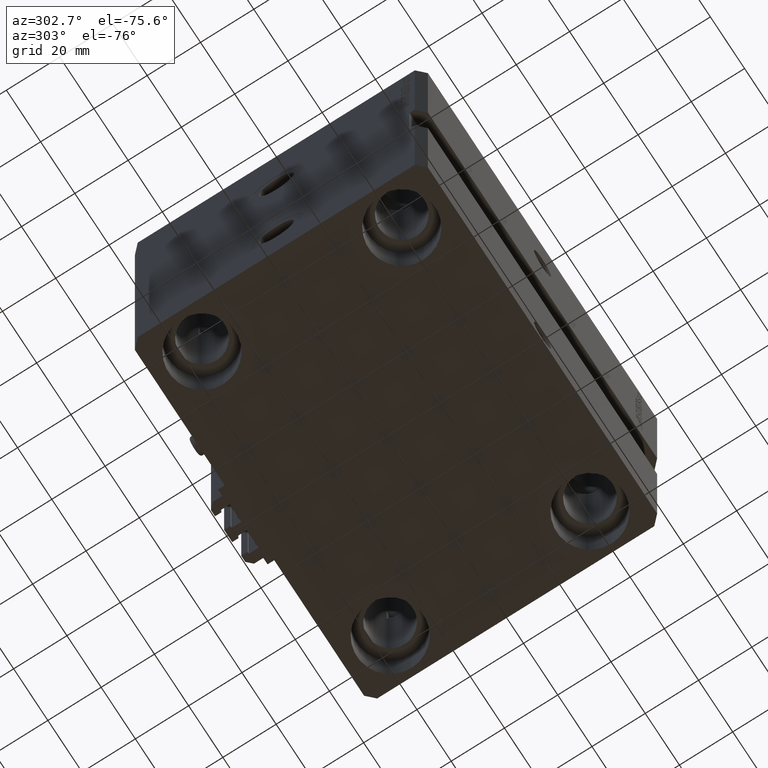
[diagram: clean part render]
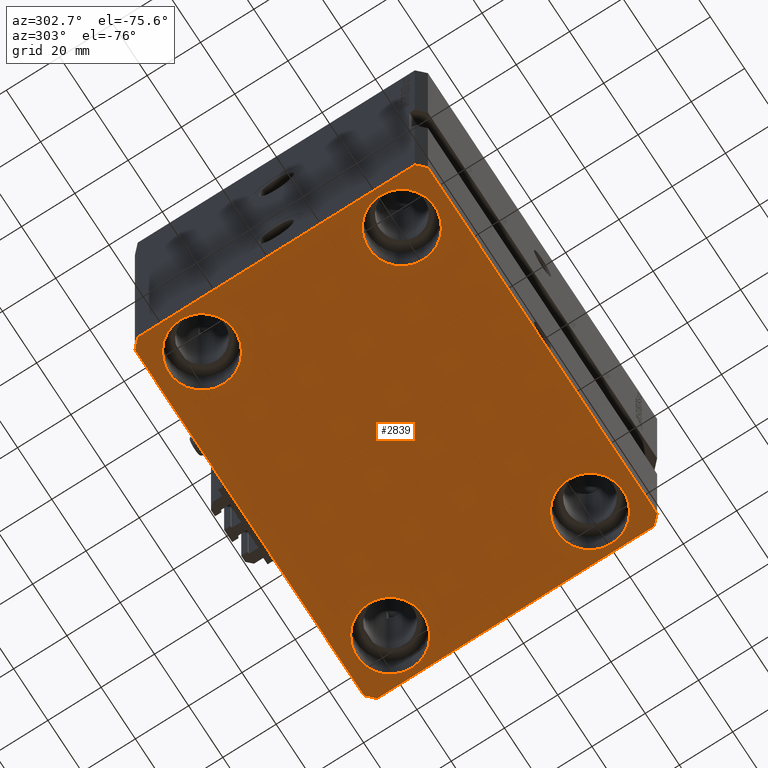
[diagram: same view with one face highlighted and labeled with its STEP entity id]
A machine part, auxiliary view. The second image highlights one B-rep face of the part: STEP entity #2839.
In plain terms, the highlighted planar face has unit normal (0, 0, 1).
Its self-contained STEP definition (entity closure, byte-faithful):
#484 = AXIS2_PLACEMENT_3D ( 'NONE', #720, #4172, #23899 ) ;
#579 = CARTESIAN_POINT ( 'NONE',  ( -69.99999999999998579, 51.99999999999999289, -120.0000000000000000 ) ) ;
#594 = CARTESIAN_POINT ( 'NONE',  ( -55.00000000000000711, 37.49999999999999289, -120.0000000000000000 ) ) ;
#720 = CARTESIAN_POINT ( 'NONE',  ( 55.00000000000000711, 37.50000000000002132, -120.0000000000000000 ) ) ;
#852 = DIRECTION ( 'NONE',  ( -0.000000000000000000, -0.000000000000000000, 1.000000000000000000 ) ) ;
#1883 = AXIS2_PLACEMENT_3D ( 'NONE', #29350, #36264, #47344 ) ;
#2174 = EDGE_CURVE ( 'NONE', #44367, #27927, #34802, .T. ) ;
#2358 = CARTESIAN_POINT ( 'NONE',  ( -70.00000000000001421, -51.99999999999999289, -120.0000000000000000 ) ) ;
#2815 = DIRECTION ( 'NONE',  ( 0.7071067811865474617, 0.7071067811865474617, 0.000000000000000000 ) ) ;
#2839 = ADVANCED_FACE ( 'NONE', ( #36828, #17529, #44467, #25701, #43734 ), #29902, .F. ) ;
#3472 = CARTESIAN_POINT ( 'NONE',  ( 0.000000000000000000, 0.000000000000000000, -120.0000000000000000 ) ) ;
#3723 = EDGE_CURVE ( 'NONE', #27927, #44367, #21408, .T. ) ;
#3942 = ORIENTED_EDGE ( 'NONE', *, *, #44794, .T. ) ;
#4172 = DIRECTION ( 'NONE',  ( -0.000000000000000000, -0.000000000000000000, 1.000000000000000000 ) ) ;
#4200 = DIRECTION ( 'NONE',  ( 1.000000000000000000, 0.000000000000000000, -0.000000000000000000 ) ) ;
#4235 = CIRCLE ( 'NONE', #1883, 12.49999999999999645 ) ;
#4370 = DIRECTION ( 'NONE',  ( 5.337610695313255329E-15, 1.000000000000000000, 0.000000000000000000 ) ) ;
#4490 = EDGE_LOOP ( 'NONE', ( #45468, #10200, #7808, #25040, #24400, #43162, #29966, #33585 ) ) ;
#4743 = EDGE_CURVE ( 'NONE', #40837, #48323, #18312, .T. ) ;
#4938 = CARTESIAN_POINT ( 'NONE',  ( 70.00000000000056843, 51.99999999999996447, -120.0000000000000000 ) ) ;
#5049 = DIRECTION ( 'NONE',  ( -1.000000000000000000, -1.553483709829969339E-16, 0.000000000000000000 ) ) ;
#5135 = DIRECTION ( 'NONE',  ( 0.7071067811865466846, -0.7071067811865483499, 0.000000000000000000 ) ) ;
#5735 = ORIENTED_EDGE ( 'NONE', *, *, #15153, .T. ) ;
#6095 = EDGE_CURVE ( 'NONE', #10245, #33961, #34743, .T. ) ;
#6127 = CARTESIAN_POINT ( 'NONE',  ( 55.00000000000000711, -37.50000000000000711, -120.0000000000000000 ) ) ;
#7140 = CARTESIAN_POINT ( 'NONE',  ( -55.00000000000000711, -37.50000000000000711, -120.0000000000000000 ) ) ;
#7808 = ORIENTED_EDGE ( 'NONE', *, *, #6095, .F. ) ;
#7964 = AXIS2_PLACEMENT_3D ( 'NONE', #6127, #24410, #13528 ) ;
#8321 = EDGE_CURVE ( 'NONE', #13605, #10245, #14156, .T. ) ;
#8370 = ORIENTED_EDGE ( 'NONE', *, *, #24659, .T. ) ;
#8435 = DIRECTION ( 'NONE',  ( -0.7071067811865451302, -0.7071067811865500152, 0.000000000000000000 ) ) ;
#8439 = EDGE_CURVE ( 'NONE', #43608, #13745, #16086, .T. ) ;
#8857 = VECTOR ( 'NONE', #38354, 1000.000000000000000 ) ;
#9137 = CIRCLE ( 'NONE', #41473, 12.49999999999999645 ) ;
#10157 = EDGE_CURVE ( 'NONE', #13745, #47762, #23655, .T. ) ;
#10200 = ORIENTED_EDGE ( 'NONE', *, *, #23243, .F. ) ;
#10245 = VERTEX_POINT ( 'NONE', #48060 ) ;
#10383 = CARTESIAN_POINT ( 'NONE',  ( -67.50000000000000000, -37.50000000000000711, -120.0000000000000000 ) ) ;
#10520 = AXIS2_PLACEMENT_3D ( 'NONE', #18631, #852, #11231 ) ;
#10613 = CARTESIAN_POINT ( 'NONE',  ( -67.00000000000001421, -55.00000000000000000, -120.0000000000000000 ) ) ;
#11231 = DIRECTION ( 'NONE',  ( 1.000000000000000000, 0.000000000000000000, 0.000000000000000000 ) ) ;
#11280 = CARTESIAN_POINT ( 'NONE',  ( 67.00000000000001421, -54.99999999999997868, -120.0000000000000000 ) ) ;
#11366 = DIRECTION ( 'NONE',  ( 0.000000000000000000, 0.000000000000000000, 1.000000000000000000 ) ) ;
#11412 = CARTESIAN_POINT ( 'NONE',  ( 67.50000000000000000, -37.50000000000000711, -120.0000000000000000 ) ) ;
#11647 = CARTESIAN_POINT ( 'NONE',  ( 42.50000000000000711, -37.50000000000000711, -120.0000000000000000 ) ) ;
#12798 = VERTEX_POINT ( 'NONE', #28109 ) ;
#12865 = VERTEX_POINT ( 'NONE', #29570 ) ;
#13295 = EDGE_CURVE ( 'NONE', #47762, #13605, #28904, .T. ) ;
#13320 = DIRECTION ( 'NONE',  ( -0.7071067811865344721, 0.7071067811865606734, 0.000000000000000000 ) ) ;
#13528 = DIRECTION ( 'NONE',  ( 1.000000000000000000, 0.000000000000000000, 0.000000000000000000 ) ) ;
#13605 = VERTEX_POINT ( 'NONE', #11280 ) ;
#13745 = VERTEX_POINT ( 'NONE', #2358 ) ;
#14126 = EDGE_LOOP ( 'NONE', ( #3942, #47510 ) ) ;
#14156 = LINE ( 'NONE', #25531, #21461 ) ;
#15153 = EDGE_CURVE ( 'NONE', #37201, #12865, #23943, .T. ) ;
#15794 = CARTESIAN_POINT ( 'NONE',  ( 55.00000000000000711, 37.50000000000002132, -120.0000000000000000 ) ) ;
#16038 = DIRECTION ( 'NONE',  ( -0.000000000000000000, -0.000000000000000000, 1.000000000000000000 ) ) ;
#16086 = LINE ( 'NONE', #579, #8857 ) ;
#16733 = VECTOR ( 'NONE', #47882, 1000.000000000000000 ) ;
#16943 = CARTESIAN_POINT ( 'NONE',  ( -42.50000000000000711, -37.50000000000000711, -120.0000000000000000 ) ) ;
#17529 = FACE_BOUND ( 'NONE', #19373, .T. ) ;
#17619 = CARTESIAN_POINT ( 'NONE',  ( 70.00000000000056843, 51.99999999999996447, -120.0000000000000000 ) ) ;
#18008 = CARTESIAN_POINT ( 'NONE',  ( 67.50000000000000000, 37.50000000000002132, -120.0000000000000000 ) ) ;
#18164 = CARTESIAN_POINT ( 'NONE',  ( -67.00000000000001421, -55.00000000000000000, -120.0000000000000000 ) ) ;
#18312 = CIRCLE ( 'NONE', #20672, 12.49999999999999645 ) ;
#18631 = CARTESIAN_POINT ( 'NONE',  ( -55.00000000000000711, 37.49999999999999289, -120.0000000000000000 ) ) ;
#19373 = EDGE_LOOP ( 'NONE', ( #19659, #29896 ) ) ;
#19659 = ORIENTED_EDGE ( 'NONE', *, *, #3723, .T. ) ;
#19732 = CARTESIAN_POINT ( 'NONE',  ( 67.00000000000061107, 55.00000000000002132, -120.0000000000000000 ) ) ;
#20672 = AXIS2_PLACEMENT_3D ( 'NONE', #7140, #37531, #33828 ) ;
#20682 = AXIS2_PLACEMENT_3D ( 'NONE', #15794, #16038, #34837 ) ;
#20952 = DIRECTION ( 'NONE',  ( -0.000000000000000000, -0.000000000000000000, 1.000000000000000000 ) ) ;
#20968 = LINE ( 'NONE', #4938, #39894 ) ;
#21408 = CIRCLE ( 'NONE', #23011, 12.49999999999999645 ) ;
#21461 = VECTOR ( 'NONE', #2815, 1000.000000000000114 ) ;
#21690 = EDGE_CURVE ( 'NONE', #40657, #12798, #23806, .T. ) ;
#23011 = AXIS2_PLACEMENT_3D ( 'NONE', #37016, #20952, #36049 ) ;
#23243 = EDGE_CURVE ( 'NONE', #33961, #40657, #20968, .T. ) ;
#23492 = LINE ( 'NONE', #26964, #47570 ) ;
#23655 = LINE ( 'NONE', #38980, #40347 ) ;
#23806 = LINE ( 'NONE', #38892, #40738 ) ;
#23899 = DIRECTION ( 'NONE',  ( 1.000000000000000000, 0.000000000000000000, 0.000000000000000000 ) ) ;
#23943 = CIRCLE ( 'NONE', #10520, 12.49999999999999645 ) ;
#23955 = EDGE_CURVE ( 'NONE', #12865, #37201, #9137, .T. ) ;
#24400 = ORIENTED_EDGE ( 'NONE', *, *, #13295, .F. ) ;
#24410 = DIRECTION ( 'NONE',  ( -0.000000000000000000, -0.000000000000000000, 1.000000000000000000 ) ) ;
#24659 = EDGE_CURVE ( 'NONE', #29023, #26168, #40698, .T. ) ;
#24675 = VECTOR ( 'NONE', #4370, 1000.000000000000000 ) ;
#25040 = ORIENTED_EDGE ( 'NONE', *, *, #8321, .F. ) ;
#25531 = CARTESIAN_POINT ( 'NONE',  ( 67.00000000000001421, -54.99999999999997868, -120.0000000000000000 ) ) ;
#25688 = ORIENTED_EDGE ( 'NONE', *, *, #39016, .T. ) ;
#25701 = FACE_BOUND ( 'NONE', #32680, .T. ) ;
#25770 = EDGE_LOOP ( 'NONE', ( #25688, #8370 ) ) ;
#26168 = VERTEX_POINT ( 'NONE', #30003 ) ;
#26479 = CARTESIAN_POINT ( 'NONE',  ( -69.99999999999998579, 51.99999999999999289, -120.0000000000000000 ) ) ;
#26964 = CARTESIAN_POINT ( 'NONE',  ( -67.00000000000000000, 55.00000000000000000, -120.0000000000000000 ) ) ;
#27927 = VERTEX_POINT ( 'NONE', #11647 ) ;
#28109 = CARTESIAN_POINT ( 'NONE',  ( -67.00000000000000000, 55.00000000000000000, -120.0000000000000000 ) ) ;
#28904 = LINE ( 'NONE', #10613, #16733 ) ;
#29023 = VERTEX_POINT ( 'NONE', #18008 ) ;
#29350 = CARTESIAN_POINT ( 'NONE',  ( -55.00000000000000711, -37.50000000000000711, -120.0000000000000000 ) ) ;
#29570 = CARTESIAN_POINT ( 'NONE',  ( -67.50000000000000000, 37.49999999999999289, -120.0000000000000000 ) ) ;
#29896 = ORIENTED_EDGE ( 'NONE', *, *, #2174, .T. ) ;
#29902 = PLANE ( 'NONE',  #34836 ) ;
#29966 = ORIENTED_EDGE ( 'NONE', *, *, #8439, .F. ) ;
#30003 = CARTESIAN_POINT ( 'NONE',  ( 42.50000000000000711, 37.50000000000002132, -120.0000000000000000 ) ) ;
#30568 = CARTESIAN_POINT ( 'NONE',  ( 70.00000000000000000, -51.99999999999999289, -120.0000000000000000 ) ) ;
#32680 = EDGE_LOOP ( 'NONE', ( #41339, #5735 ) ) ;
#33585 = ORIENTED_EDGE ( 'NONE', *, *, #44381, .F. ) ;
#33828 = DIRECTION ( 'NONE',  ( 1.000000000000000000, 0.000000000000000000, 0.000000000000000000 ) ) ;
#33961 = VERTEX_POINT ( 'NONE', #17619 ) ;
#34743 = LINE ( 'NONE', #30568, #24675 ) ;
#34802 = CIRCLE ( 'NONE', #7964, 12.49999999999999645 ) ;
#34836 = AXIS2_PLACEMENT_3D ( 'NONE', #3472, #11366, #4200 ) ;
#34837 = DIRECTION ( 'NONE',  ( 1.000000000000000000, 0.000000000000000000, 0.000000000000000000 ) ) ;
#36049 = DIRECTION ( 'NONE',  ( 1.000000000000000000, 0.000000000000000000, 0.000000000000000000 ) ) ;
#36264 = DIRECTION ( 'NONE',  ( -0.000000000000000000, -0.000000000000000000, 1.000000000000000000 ) ) ;
#36828 = FACE_BOUND ( 'NONE', #14126, .T. ) ;
#37016 = CARTESIAN_POINT ( 'NONE',  ( 55.00000000000000711, -37.50000000000000711, -120.0000000000000000 ) ) ;
#37148 = DIRECTION ( 'NONE',  ( 1.000000000000000000, 0.000000000000000000, 0.000000000000000000 ) ) ;
#37201 = VERTEX_POINT ( 'NONE', #40617 ) ;
#37531 = DIRECTION ( 'NONE',  ( -0.000000000000000000, -0.000000000000000000, 1.000000000000000000 ) ) ;
#38354 = DIRECTION ( 'NONE',  ( -2.668805347656626678E-16, -1.000000000000000000, 0.000000000000000000 ) ) ;
#38892 = CARTESIAN_POINT ( 'NONE',  ( 67.00000000000061107, 55.00000000000002132, -120.0000000000000000 ) ) ;
#38980 = CARTESIAN_POINT ( 'NONE',  ( -70.00000000000001421, -51.99999999999999289, -120.0000000000000000 ) ) ;
#39016 = EDGE_CURVE ( 'NONE', #26168, #29023, #41993, .T. ) ;
#39894 = VECTOR ( 'NONE', #13320, 1000.000000000000000 ) ;
#40347 = VECTOR ( 'NONE', #5135, 1000.000000000000000 ) ;
#40617 = CARTESIAN_POINT ( 'NONE',  ( -42.50000000000000711, 37.49999999999999289, -120.0000000000000000 ) ) ;
#40657 = VERTEX_POINT ( 'NONE', #19732 ) ;
#40698 = CIRCLE ( 'NONE', #484, 12.49999999999999645 ) ;
#40738 = VECTOR ( 'NONE', #5049, 1000.000000000000000 ) ;
#40837 = VERTEX_POINT ( 'NONE', #16943 ) ;
#41339 = ORIENTED_EDGE ( 'NONE', *, *, #23955, .T. ) ;
#41473 = AXIS2_PLACEMENT_3D ( 'NONE', #594, #45750, #37148 ) ;
#41993 = CIRCLE ( 'NONE', #20682, 12.49999999999999645 ) ;
#43162 = ORIENTED_EDGE ( 'NONE', *, *, #10157, .F. ) ;
#43608 = VERTEX_POINT ( 'NONE', #26479 ) ;
#43734 = FACE_OUTER_BOUND ( 'NONE', #4490, .T. ) ;
#44367 = VERTEX_POINT ( 'NONE', #11412 ) ;
#44381 = EDGE_CURVE ( 'NONE', #12798, #43608, #23492, .T. ) ;
#44467 = FACE_BOUND ( 'NONE', #25770, .T. ) ;
#44794 = EDGE_CURVE ( 'NONE', #48323, #40837, #4235, .T. ) ;
#45468 = ORIENTED_EDGE ( 'NONE', *, *, #21690, .F. ) ;
#45750 = DIRECTION ( 'NONE',  ( -0.000000000000000000, -0.000000000000000000, 1.000000000000000000 ) ) ;
#47344 = DIRECTION ( 'NONE',  ( 1.000000000000000000, 0.000000000000000000, 0.000000000000000000 ) ) ;
#47510 = ORIENTED_EDGE ( 'NONE', *, *, #4743, .T. ) ;
#47570 = VECTOR ( 'NONE', #8435, 1000.000000000000114 ) ;
#47762 = VERTEX_POINT ( 'NONE', #18164 ) ;
#47882 = DIRECTION ( 'NONE',  ( 1.000000000000000000, 1.553483709829976241E-16, 0.000000000000000000 ) ) ;
#48060 = CARTESIAN_POINT ( 'NONE',  ( 70.00000000000000000, -51.99999999999999289, -120.0000000000000000 ) ) ;
#48323 = VERTEX_POINT ( 'NONE', #10383 ) ;